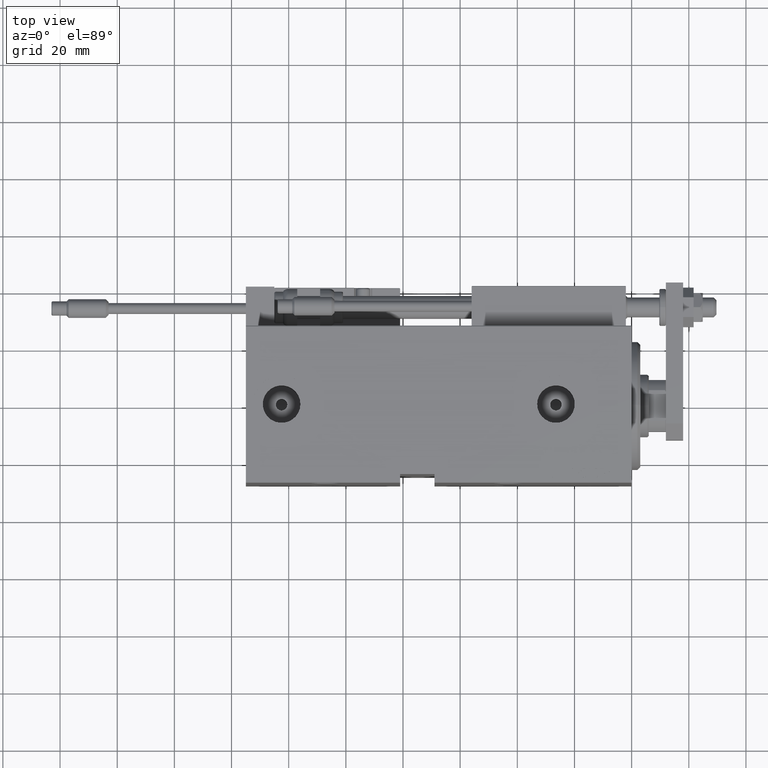
[diagram: clean part render]
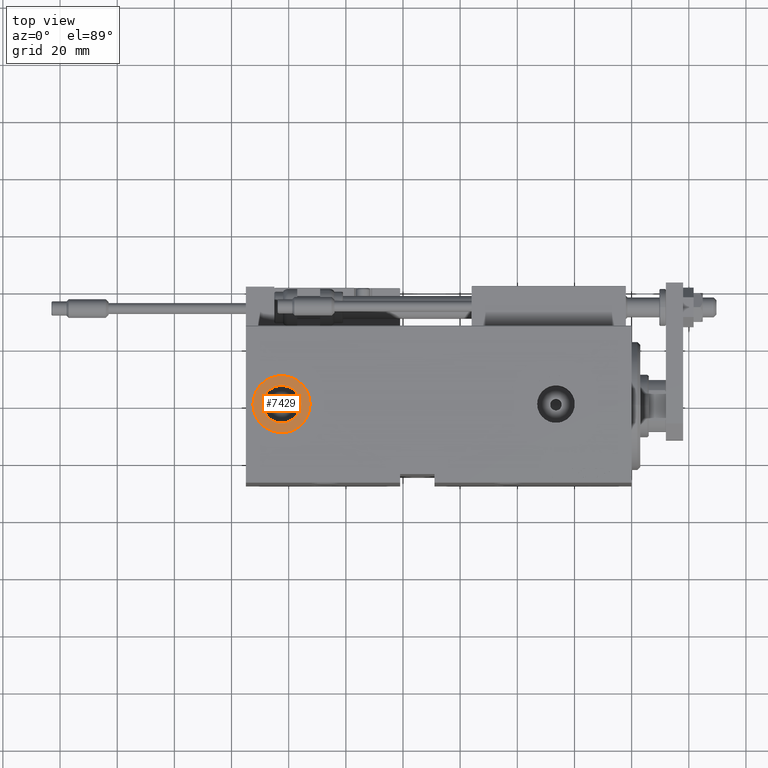
[diagram: same view with one face highlighted and labeled with its STEP entity id]
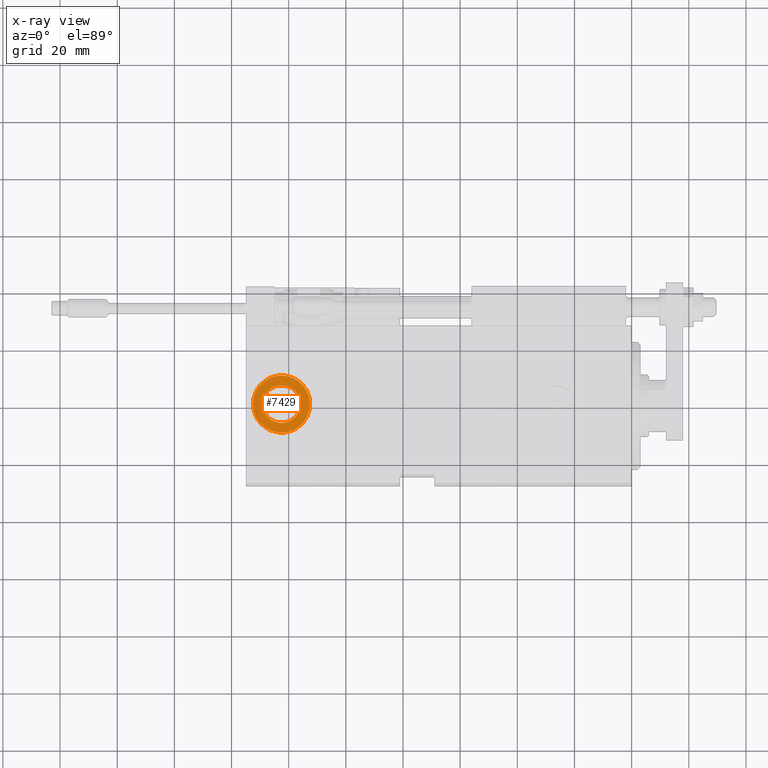
[diagram: x-ray of the same camera — body ghosted, the highlighted face saturated]
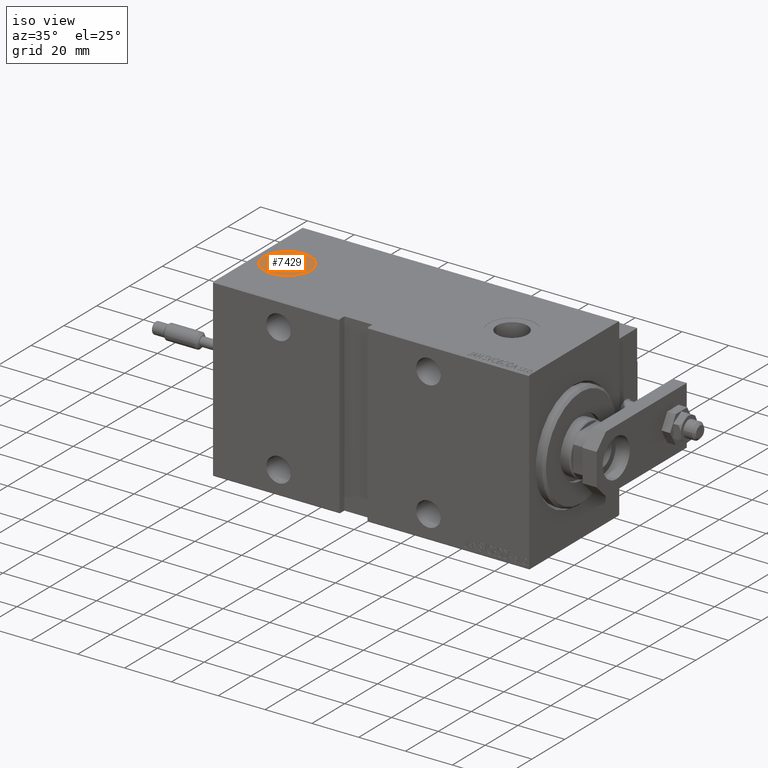
[diagram: same view with one face highlighted and labeled with its STEP entity id]
A machine part, top view. The second image highlights one B-rep face of the part: STEP entity #7429.
The next image is the same camera in x-ray: the body ghosted, the highlighted face saturated — about 0% of this face is hidden behind the body in this view.
A second angle (iso view) of the same face is appended — the face is thin or edge-on in the first view.
In plain terms, the highlighted planar face has unit normal (0, 0, 1).
Its self-contained STEP definition (entity closure, byte-faithful):
#631 = DIRECTION ( 'NONE',  ( 1.000000000000000000, 0.000000000000000000, 0.000000000000000000 ) ) ;
#6971 = VERTEX_POINT ( 'NONE', #22881 ) ;
#7429 = ADVANCED_FACE ( 'NONE', ( #35042, #19148 ), #27475, .T. ) ;
#8830 = ORIENTED_EDGE ( 'NONE', *, *, #41729, .T. ) ;
#9142 = VERTEX_POINT ( 'NONE', #43759 ) ;
#9828 = EDGE_CURVE ( 'NONE', #9142, #23741, #48169, .T. ) ;
#10429 = DIRECTION ( 'NONE',  ( 1.000000000000000000, 0.000000000000000000, 0.000000000000000000 ) ) ;
#12051 = AXIS2_PLACEMENT_3D ( 'NONE', #30458, #30981, #46341 ) ;
#12436 = EDGE_LOOP ( 'NONE', ( #36475, #8830 ) ) ;
#15394 = AXIS2_PLACEMENT_3D ( 'NONE', #19954, #32189, #631 ) ;
#15746 = DIRECTION ( 'NONE',  ( 1.000000000000000000, 0.000000000000000000, 0.000000000000000000 ) ) ;
#18838 = EDGE_LOOP ( 'NONE', ( #44488, #22699 ) ) ;
#18982 = AXIS2_PLACEMENT_3D ( 'NONE', #43366, #50908, #23590 ) ;
#19148 = FACE_OUTER_BOUND ( 'NONE', #12436, .T. ) ;
#19954 = CARTESIAN_POINT ( 'NONE',  ( 122.5000000000000142, -9.462128050782584868E-15, 37.39999999999999858 ) ) ;
#20470 = AXIS2_PLACEMENT_3D ( 'NONE', #44644, #48289, #15746 ) ;
#22184 = CARTESIAN_POINT ( 'NONE',  ( 122.5000000000000142, -9.462128050782584868E-15, 37.39999999999999858 ) ) ;
#22699 = ORIENTED_EDGE ( 'NONE', *, *, #45510, .F. ) ;
#22881 = CARTESIAN_POINT ( 'NONE',  ( 115.9199999999999875, -8.656310456943622671E-15, 37.39999999999999858 ) ) ;
#23590 = DIRECTION ( 'NONE',  ( 1.000000000000000000, 0.000000000000000000, -0.000000000000000000 ) ) ;
#23741 = VERTEX_POINT ( 'NONE', #27671 ) ;
#27475 = PLANE ( 'NONE',  #18982 ) ;
#27507 = VERTEX_POINT ( 'NONE', #37071 ) ;
#27671 = CARTESIAN_POINT ( 'NONE',  ( 112.5000000000000142, -8.237481251635233387E-15, 37.39999999999999858 ) ) ;
#30458 = CARTESIAN_POINT ( 'NONE',  ( 122.5000000000000142, -9.462128050782584868E-15, 37.39999999999999858 ) ) ;
#30981 = DIRECTION ( 'NONE',  ( 0.000000000000000000, 0.000000000000000000, 1.000000000000000000 ) ) ;
#32189 = DIRECTION ( 'NONE',  ( 0.000000000000000000, 0.000000000000000000, 1.000000000000000000 ) ) ;
#34529 = CIRCLE ( 'NONE', #12051, 9.999999999999994671 ) ;
#34605 = CIRCLE ( 'NONE', #20470, 6.580000000000016058 ) ;
#35042 = FACE_BOUND ( 'NONE', #18838, .T. ) ;
#36475 = ORIENTED_EDGE ( 'NONE', *, *, #9828, .T. ) ;
#37071 = CARTESIAN_POINT ( 'NONE',  ( 129.0800000000000409, -9.462128050782584868E-15, 37.39999999999999858 ) ) ;
#39041 = AXIS2_PLACEMENT_3D ( 'NONE', #22184, #45612, #10429 ) ;
#41729 = EDGE_CURVE ( 'NONE', #23741, #9142, #34529, .T. ) ;
#41998 = CIRCLE ( 'NONE', #15394, 6.580000000000016058 ) ;
#43366 = CARTESIAN_POINT ( 'NONE',  ( 122.5000000000000142, -9.462128050782584868E-15, 37.39999999999999858 ) ) ;
#43759 = CARTESIAN_POINT ( 'NONE',  ( 132.5000000000000000, -9.462128050782584868E-15, 37.39999999999999858 ) ) ;
#44488 = ORIENTED_EDGE ( 'NONE', *, *, #48280, .F. ) ;
#44644 = CARTESIAN_POINT ( 'NONE',  ( 122.5000000000000142, -9.462128050782584868E-15, 37.39999999999999858 ) ) ;
#45510 = EDGE_CURVE ( 'NONE', #6971, #27507, #41998, .T. ) ;
#45612 = DIRECTION ( 'NONE',  ( 0.000000000000000000, 0.000000000000000000, 1.000000000000000000 ) ) ;
#46341 = DIRECTION ( 'NONE',  ( 1.000000000000000000, 0.000000000000000000, 0.000000000000000000 ) ) ;
#48169 = CIRCLE ( 'NONE', #39041, 9.999999999999994671 ) ;
#48280 = EDGE_CURVE ( 'NONE', #27507, #6971, #34605, .T. ) ;
#48289 = DIRECTION ( 'NONE',  ( 0.000000000000000000, 0.000000000000000000, 1.000000000000000000 ) ) ;
#50908 = DIRECTION ( 'NONE',  ( 0.000000000000000000, 0.000000000000000000, 1.000000000000000000 ) ) ;